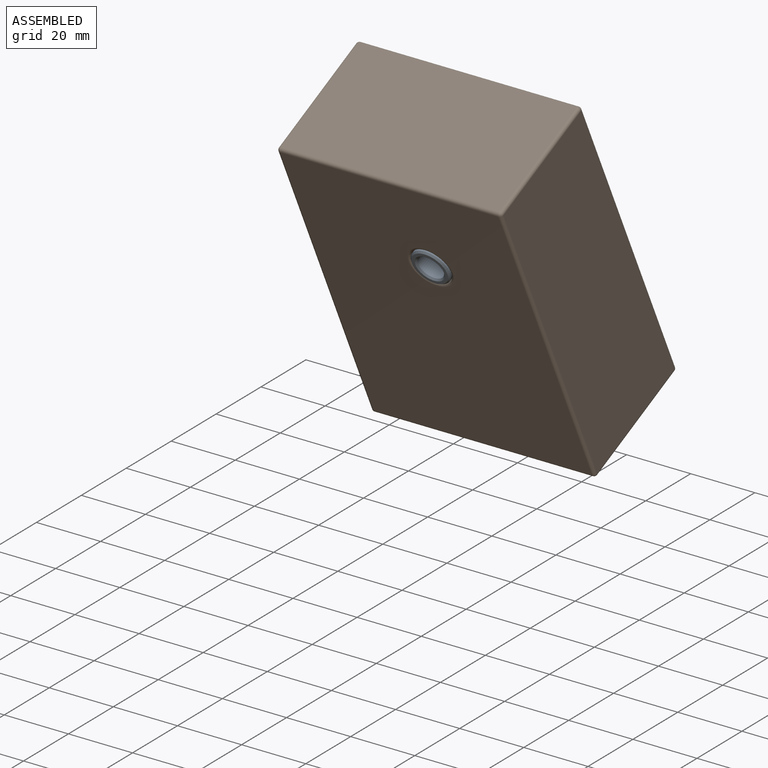
[diagram: assembled view]
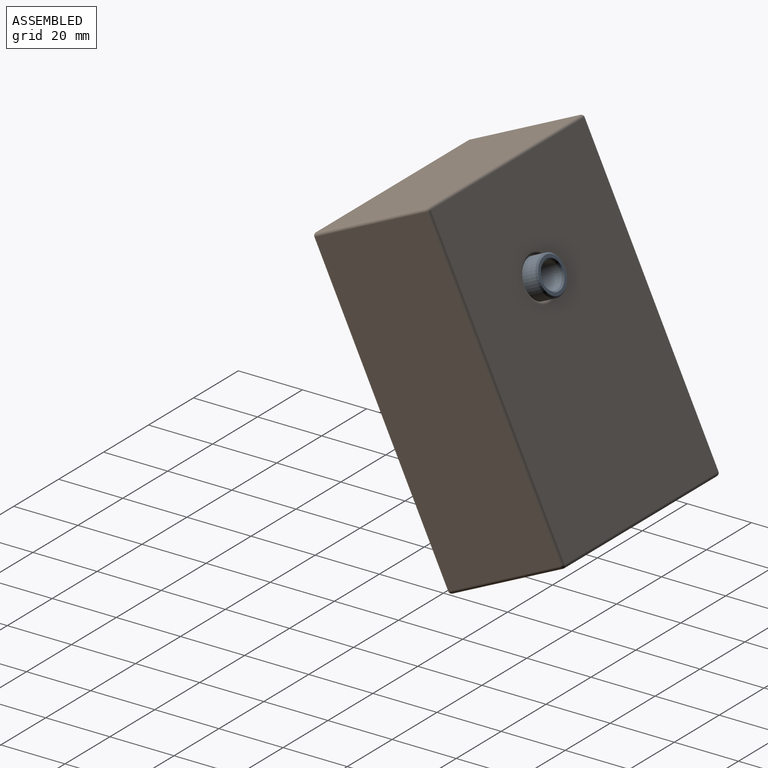
[diagram: assembled view, second angle]
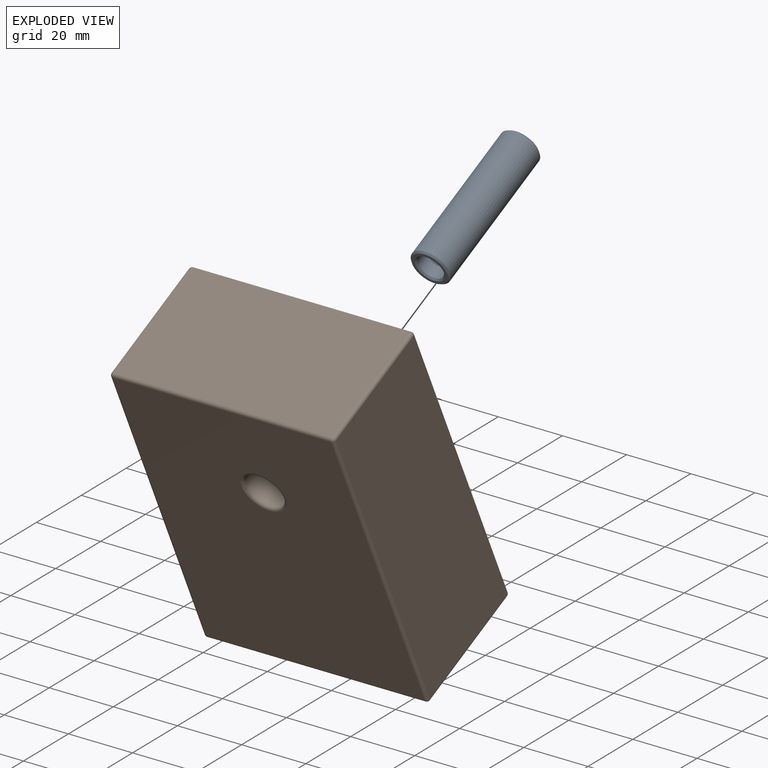
[diagram: exploded view]
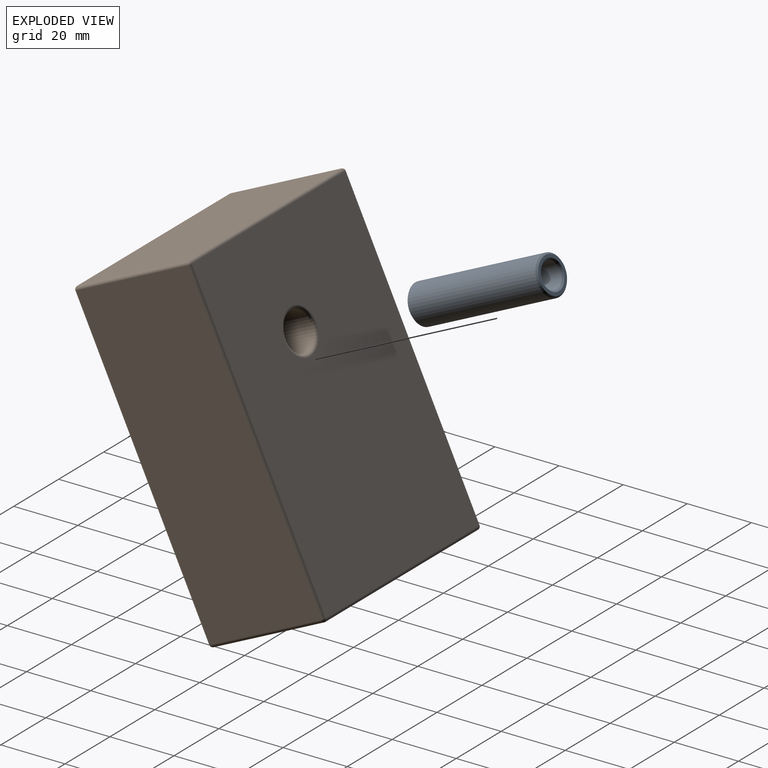
[diagram: exploded view, second angle]
ASSEMBLY  parts=2 mates=2
PART A: 8 faces, bbox 12x12x45 mm
  f0: cylinder r=4mm len=44mm, axis (0,0,-1), area 1105.8mm2, adj f4,f7
  f1: cylinder r=6mm len=44mm, axis (0,0,-1), area 1658.8mm2, adj f5,f6
  f2: plane 11x11mm, normal (0,0,1), area 31.4mm2, adj f5,f7
  f3: plane 11x11mm, normal (0,0,-1), area 31.4mm2, adj f4,f6
  f4: cone r=4.5mm half-angle=45deg, axis (0,0,-1), area 18.9mm2, adj f0,f3
  f5: cone r=5.5mm half-angle=45deg, axis (0,0,-1), area 25.5mm2, adj f1,f2
  f6: cone r=6mm half-angle=45deg, axis (0,0,1), area 25.5mm2, adj f1,f3
  f7: cone r=4mm half-angle=45deg, axis (0,0,1), area 18.9mm2, adj f0,f2
PART B: 29 faces, bbox 70x40x100 mm
  f0: plane 98x38mm, normal (-1,0,0), area 3724mm2, adj f17,f22,f25,f28
  f1: plane 68x38mm, normal (0,0,-1), area 2584mm2, adj f14,f23,f24,f28
  f2: plane 98x38mm, normal (1,0,0), area 3724mm2, adj f9,f13,f14,f15
  f3: plane 68x38mm, normal (0,0,1), area 2584mm2, adj f9,f12,f16,f17
  f4: plane 98x68mm, normal (0,-1,0), area 6510.1mm2, adj f8,f12,f13,f22,f23
  f5: plane 98x68mm, normal (0,1,0), area 6510.1mm2, adj f7,f15,f16,f24,f25
  f6: cylinder r=6mm len=38mm, axis (0,-1,0), area 1432.6mm2, adj f7,f8
  f7: torus R=7mm, axis (0,-1,0), area 62.8mm2, adj f5,f6
  f8: torus R=7mm, axis (0,-1,0), area 62.8mm2, adj f4,f6
  f9: cylinder r=1mm len=38mm, axis (0,-1,0), area 59.7mm2, adj f2,f3,f10,f11
  f10: sphere r=1mm, area 1.6mm2, adj f9,f12,f13
  f11: sphere r=1mm, area 1.6mm2, adj f9,f15,f16
  f12: cylinder r=1mm len=68mm, axis (1,0,0), area 106.8mm2, adj f3,f4,f10,f18
  f13: cylinder r=1mm len=98mm, axis (0,0,-1), area 153.9mm2, adj f2,f4,f10,f19
  f14: cylinder r=1mm len=38mm, axis (0,1,0), area 59.7mm2, adj f1,f2,f19,f20
  f15: cylinder r=1mm len=98mm, axis (0,0,1), area 153.9mm2, adj f2,f5,f11,f20
  f16: cylinder r=1mm len=68mm, axis (-1,0,0), area 106.8mm2, adj f3,f5,f11,f21
  f17: cylinder r=1mm len=38mm, axis (0,1,0), area 59.7mm2, adj f0,f3,f18,f21
  f18: sphere r=1mm, area 1.6mm2, adj f12,f17,f22
  f19: sphere r=1mm, area 1.6mm2, adj f13,f14,f23
  f20: sphere r=1mm, area 1.6mm2, adj f14,f15,f24
  f21: sphere r=1mm, area 1.6mm2, adj f16,f17,f25
  f22: cylinder r=1mm len=98mm, axis (0,0,1), area 153.9mm2, adj f0,f4,f18,f26
  f23: cylinder r=1mm len=68mm, axis (-1,0,0), area 106.8mm2, adj f1,f4,f19,f26
  f24: cylinder r=1mm len=68mm, axis (1,0,0), area 106.8mm2, adj f1,f5,f20,f27
  f25: cylinder r=1mm len=98mm, axis (0,0,-1), area 153.9mm2, adj f0,f5,f21,f27
  f26: sphere r=1mm, area 1.6mm2, adj f22,f23,f28
  f27: sphere r=1mm, area 1.6mm2, adj f24,f25,f28
  f28: cylinder r=1mm len=38mm, axis (0,-1,0), area 59.7mm2, adj f0,f1,f26,f27
PLACE A rot(axis=(-1,0,0),64.8deg) t=(81.16,-17.85,73.09)mm
PLACE B rot(axis=(-1,0,0),154.8deg) t=(42.16,-30.59,101.35)mm
MATE planar A.f1 <-> B.f6  axis (0,-0.9,-0.43) through (81.16,-17.4,73.3)mm
MATE cylindrical A.f1 <-> B.f6  axis (0,-0.9,-0.43) through (81.16,-17.4,73.3)mm
